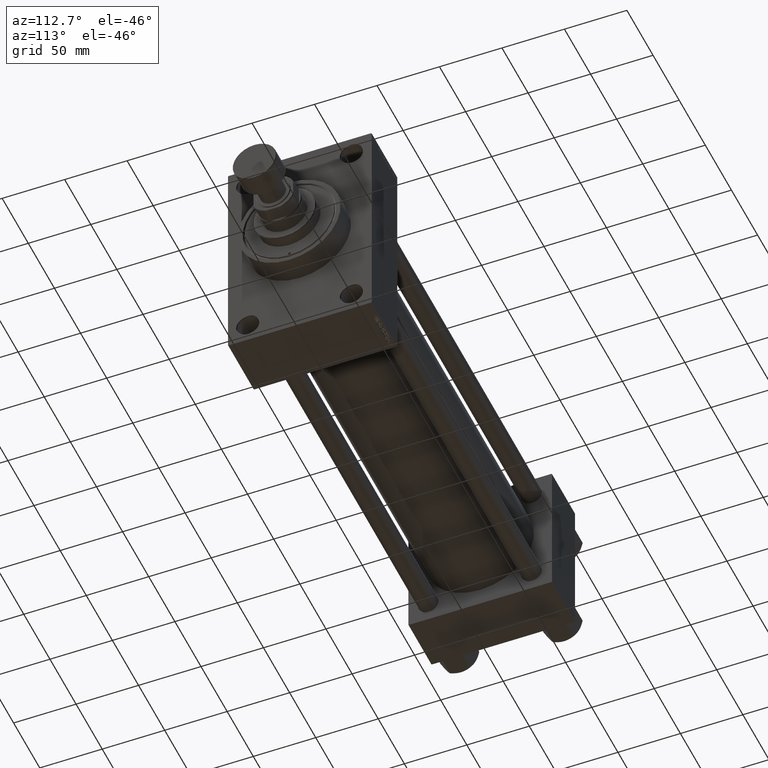
[diagram: clean part render]
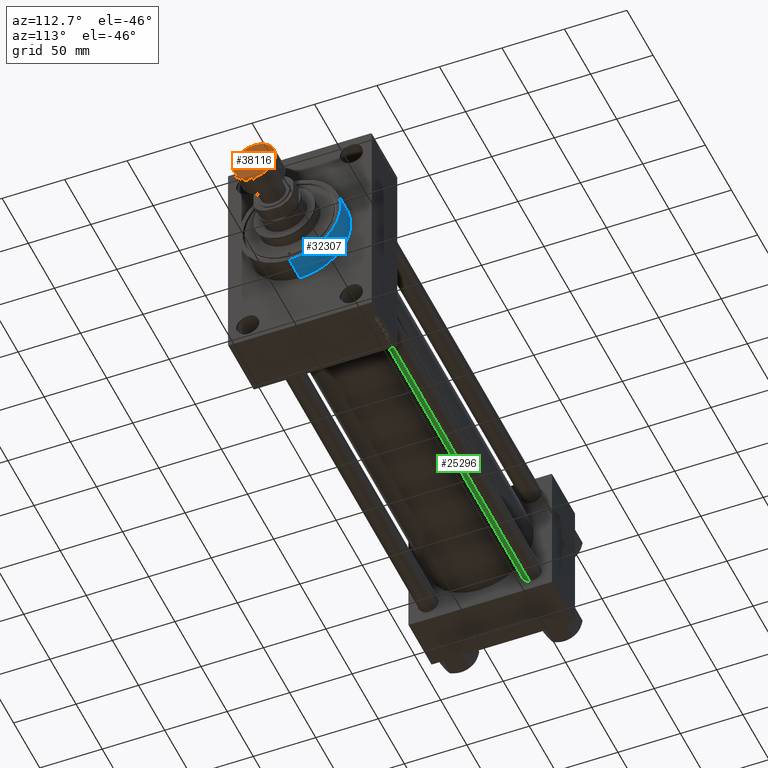
[diagram: same view with three faces highlighted in distinct colors, each labeled with its STEP entity id]
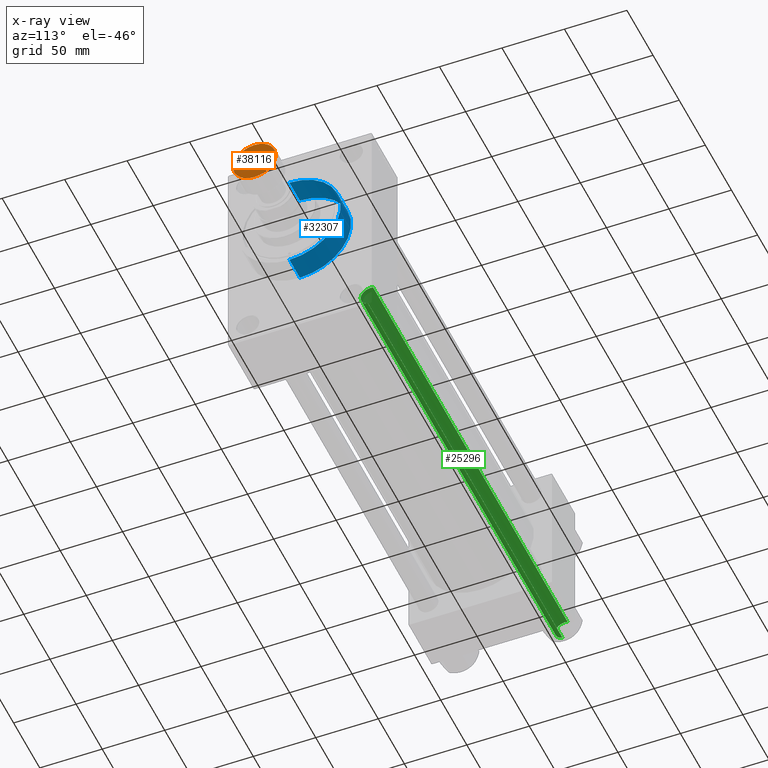
[diagram: x-ray of the same camera — body ghosted, the three highlighted faces saturated]
A machine part, auxiliary view with three faces highlighted in distinct colors.
The next image is the same camera in x-ray (body ghosted, the three faces saturated) — at least one of them is partly hidden behind the body in this view.
Their STEP definitions:

[orange] entity #38116 — the highlighted planar face has unit normal (1, 0, 0).
#3930 = CARTESIAN_POINT ( 'NONE',  ( 0.000000000000000000, 0.000000000000000000, 0.000000000000000000 ) ) ;
#11996 = CARTESIAN_POINT ( 'NONE',  ( 0.000000000000000000, 0.000000000000000000, 0.000000000000000000 ) ) ;
#14882 = ORIENTED_EDGE ( 'NONE', *, *, #34791, .T. ) ;
#16449 = VERTEX_POINT ( 'NONE', #46415 ) ;
#22159 = CARTESIAN_POINT ( 'NONE',  ( 0.000000000000000000, 0.000000000000000000, 0.000000000000000000 ) ) ;
#22262 = EDGE_CURVE ( 'NONE', #26932, #16449, #45960, .T. ) ;
#23608 = CIRCLE ( 'NONE', #36880, 17.00000000000000355 ) ;
#24357 = CARTESIAN_POINT ( 'NONE',  ( -17.00000000000000355, 2.112515728529184856E-15, 0.000000000000000000 ) ) ;
#25310 = AXIS2_PLACEMENT_3D ( 'NONE', #3930, #33526, #32148 ) ;
#26551 = DIRECTION ( 'NONE',  ( 1.000000000000000000, 0.000000000000000000, 0.000000000000000000 ) ) ;
#26932 = VERTEX_POINT ( 'NONE', #24357 ) ;
#28953 = FACE_OUTER_BOUND ( 'NONE', #46843, .T. ) ;
#32148 = DIRECTION ( 'NONE',  ( 1.000000000000000000, 0.000000000000000000, -0.000000000000000000 ) ) ;
#33526 = DIRECTION ( 'NONE',  ( 0.000000000000000000, 0.000000000000000000, 1.000000000000000000 ) ) ;
#34013 = ORIENTED_EDGE ( 'NONE', *, *, #22262, .T. ) ;
#34791 = EDGE_CURVE ( 'NONE', #16449, #26932, #23608, .T. ) ;
#36880 = AXIS2_PLACEMENT_3D ( 'NONE', #22159, #37079, #26551 ) ;
#37079 = DIRECTION ( 'NONE',  ( 0.000000000000000000, 0.000000000000000000, 1.000000000000000000 ) ) ;
#38116 = ADVANCED_FACE ( 'NONE', ( #28953 ), #47291, .T. ) ;
#38919 = AXIS2_PLACEMENT_3D ( 'NONE', #11996, #45492, #46206 ) ;
#45492 = DIRECTION ( 'NONE',  ( 0.000000000000000000, 0.000000000000000000, 1.000000000000000000 ) ) ;
#45960 = CIRCLE ( 'NONE', #38919, 17.00000000000000355 ) ;
#46206 = DIRECTION ( 'NONE',  ( 1.000000000000000000, 0.000000000000000000, 0.000000000000000000 ) ) ;
#46415 = CARTESIAN_POINT ( 'NONE',  ( 17.00000000000000355, 0.000000000000000000, 0.000000000000000000 ) ) ;
#46843 = EDGE_LOOP ( 'NONE', ( #14882, #34013 ) ) ;
#47291 = PLANE ( 'NONE',  #25310 ) ;

[blue] entity #32307 — the highlighted cylindrical surface (partial cylindrical patch) has radius 41 mm, axis along (-1, -0, -0).
#1870 = CARTESIAN_POINT ( 'NONE',  ( 409.0000000000000000, 0.000000000000000000, 0.000000000000000000 ) ) ;
#2020 = CARTESIAN_POINT ( 'NONE',  ( 388.9999999999999432, 0.000000000000000000, 0.000000000000000000 ) ) ;
#2329 = AXIS2_PLACEMENT_3D ( 'NONE', #14465, #40636, #32813 ) ;
#3223 = AXIS2_PLACEMENT_3D ( 'NONE', #1870, #8460, #28028 ) ;
#4076 = ORIENTED_EDGE ( 'NONE', *, *, #7605, .T. ) ;
#4797 = VERTEX_POINT ( 'NONE', #42555 ) ;
#5291 = CYLINDRICAL_SURFACE ( 'NONE', #3223, 41.00000000000000000 ) ;
#7389 = ORIENTED_EDGE ( 'NONE', *, *, #24572, .F. ) ;
#7605 = EDGE_CURVE ( 'NONE', #45324, #31547, #27509, .T. ) ;
#8460 = DIRECTION ( 'NONE',  ( -1.000000000000000000, -0.000000000000000000, -0.000000000000000000 ) ) ;
#10442 = CARTESIAN_POINT ( 'NONE',  ( 409.0000000000000000, 0.000000000000000000, 41.00000000000000000 ) ) ;
#13023 = DIRECTION ( 'NONE',  ( 0.000000000000000000, 0.000000000000000000, -1.000000000000000000 ) ) ;
#13657 = ORIENTED_EDGE ( 'NONE', *, *, #16556, .F. ) ;
#14465 = CARTESIAN_POINT ( 'NONE',  ( 409.0000000000000000, 0.000000000000000000, 0.000000000000000000 ) ) ;
#16485 = EDGE_LOOP ( 'NONE', ( #7389, #4076, #42208, #13657 ) ) ;
#16556 = EDGE_CURVE ( 'NONE', #4797, #29474, #36143, .T. ) ;
#18418 = VECTOR ( 'NONE', #36864, 1000.000000000000000 ) ;
#24289 = EDGE_CURVE ( 'NONE', #31547, #29474, #48366, .T. ) ;
#24572 = EDGE_CURVE ( 'NONE', #45324, #4797, #38250, .T. ) ;
#27509 = LINE ( 'NONE', #38295, #38674 ) ;
#28028 = DIRECTION ( 'NONE',  ( 0.000000000000000000, 0.000000000000000000, 1.000000000000000000 ) ) ;
#29474 = VERTEX_POINT ( 'NONE', #41080 ) ;
#29878 = CARTESIAN_POINT ( 'NONE',  ( 409.0000000000000000, 5.021051876504148963E-15, -41.00000000000000000 ) ) ;
#30724 = FACE_OUTER_BOUND ( 'NONE', #16485, .T. ) ;
#31547 = VERTEX_POINT ( 'NONE', #44149 ) ;
#32307 = ADVANCED_FACE ( 'NONE', ( #30724 ), #5291, .T. ) ;
#32813 = DIRECTION ( 'NONE',  ( 0.000000000000000000, 0.000000000000000000, -1.000000000000000000 ) ) ;
#36143 = LINE ( 'NONE', #10442, #18418 ) ;
#36864 = DIRECTION ( 'NONE',  ( -1.000000000000000000, -0.000000000000000000, -0.000000000000000000 ) ) ;
#38250 = CIRCLE ( 'NONE', #2329, 41.00000000000000000 ) ;
#38295 = CARTESIAN_POINT ( 'NONE',  ( 409.0000000000000000, 5.021051876504148963E-15, -41.00000000000000000 ) ) ;
#38674 = VECTOR ( 'NONE', #46104, 1000.000000000000000 ) ;
#39786 = AXIS2_PLACEMENT_3D ( 'NONE', #2020, #46035, #13023 ) ;
#40636 = DIRECTION ( 'NONE',  ( 1.000000000000000000, 0.000000000000000000, 0.000000000000000000 ) ) ;
#41080 = CARTESIAN_POINT ( 'NONE',  ( 388.9999999999999432, 0.000000000000000000, 41.00000000000000000 ) ) ;
#42208 = ORIENTED_EDGE ( 'NONE', *, *, #24289, .T. ) ;
#42555 = CARTESIAN_POINT ( 'NONE',  ( 409.0000000000000000, 0.000000000000000000, 41.00000000000000000 ) ) ;
#44149 = CARTESIAN_POINT ( 'NONE',  ( 388.9999999999999432, 5.021051876504148963E-15, -41.00000000000000000 ) ) ;
#45324 = VERTEX_POINT ( 'NONE', #29878 ) ;
#46035 = DIRECTION ( 'NONE',  ( 1.000000000000000000, 0.000000000000000000, 0.000000000000000000 ) ) ;
#46104 = DIRECTION ( 'NONE',  ( -1.000000000000000000, -0.000000000000000000, -0.000000000000000000 ) ) ;
#48366 = CIRCLE ( 'NONE', #39786, 41.00000000000000000 ) ;

[green] entity #25296 — the highlighted cylindrical surface (edge-blend (fillet) strip) has radius 8 mm, axis along (1, -0, 0).
#1006 = ORIENTED_EDGE ( 'NONE', *, *, #32074, .T. ) ;
#1475 = DIRECTION ( 'NONE',  ( 1.000000000000000000, 0.000000000000000000, 0.000000000000000000 ) ) ;
#2155 = VERTEX_POINT ( 'NONE', #26206 ) ;
#4637 = LINE ( 'NONE', #16611, #11752 ) ;
#4961 = ORIENTED_EDGE ( 'NONE', *, *, #36623, .T. ) ;
#6583 = CYLINDRICAL_SURFACE ( 'NONE', #45335, 8.000000000000000000 ) ;
#6905 = DIRECTION ( 'NONE',  ( -0.000000000000000000, -0.000000000000000000, 1.000000000000000000 ) ) ;
#7224 = EDGE_LOOP ( 'NONE', ( #18090, #4961, #19760, #1006 ) ) ;
#11752 = VECTOR ( 'NONE', #39119, 1000.000000000000000 ) ;
#12212 = CARTESIAN_POINT ( 'NONE',  ( 8.000000000000000000, 9.797174393178825657E-16, 372.5000000000000000 ) ) ;
#16611 = CARTESIAN_POINT ( 'NONE',  ( 8.000000000000000000, 9.797174393178825657E-16, 373.0000000000000000 ) ) ;
#17848 = DIRECTION ( 'NONE',  ( -1.000000000000000000, 0.000000000000000000, 0.000000000000000000 ) ) ;
#18090 = ORIENTED_EDGE ( 'NONE', *, *, #30575, .F. ) ;
#19760 = ORIENTED_EDGE ( 'NONE', *, *, #46383, .T. ) ;
#20616 = CARTESIAN_POINT ( 'NONE',  ( 0.000000000000000000, 0.000000000000000000, 373.0000000000000000 ) ) ;
#20651 = LINE ( 'NONE', #25444, #45106 ) ;
#21173 = CIRCLE ( 'NONE', #23544, 8.000000000000000000 ) ;
#21828 = DIRECTION ( 'NONE',  ( 1.000000000000000000, 0.000000000000000000, 0.000000000000000000 ) ) ;
#21976 = VERTEX_POINT ( 'NONE', #45139 ) ;
#23544 = AXIS2_PLACEMENT_3D ( 'NONE', #25968, #6905, #21828 ) ;
#24278 = FACE_OUTER_BOUND ( 'NONE', #7224, .T. ) ;
#25296 = ADVANCED_FACE ( 'NONE', ( #24278 ), #6583, .T. ) ;
#25444 = CARTESIAN_POINT ( 'NONE',  ( -8.000000000000000000, 0.000000000000000000, 373.0000000000000000 ) ) ;
#25968 = CARTESIAN_POINT ( 'NONE',  ( 0.000000000000000000, 0.000000000000000000, 0.5000000000000559552 ) ) ;
#26206 = CARTESIAN_POINT ( 'NONE',  ( 8.000000000000000000, 9.797174393178825657E-16, 0.5000000000000559552 ) ) ;
#27750 = VERTEX_POINT ( 'NONE', #12212 ) ;
#28837 = DIRECTION ( 'NONE',  ( -0.000000000000000000, -0.000000000000000000, -1.000000000000000000 ) ) ;
#30575 = EDGE_CURVE ( 'NONE', #27750, #2155, #4637, .T. ) ;
#32074 = EDGE_CURVE ( 'NONE', #21976, #2155, #21173, .T. ) ;
#34346 = CARTESIAN_POINT ( 'NONE',  ( -8.000000000000000000, 0.000000000000000000, 372.5000000000000000 ) ) ;
#35702 = CARTESIAN_POINT ( 'NONE',  ( 0.000000000000000000, 0.000000000000000000, 372.5000000000000000 ) ) ;
#36623 = EDGE_CURVE ( 'NONE', #27750, #45112, #37746, .T. ) ;
#37746 = CIRCLE ( 'NONE', #42438, 8.000000000000000000 ) ;
#39119 = DIRECTION ( 'NONE',  ( -0.000000000000000000, -0.000000000000000000, -1.000000000000000000 ) ) ;
#40378 = DIRECTION ( 'NONE',  ( -0.000000000000000000, -0.000000000000000000, -1.000000000000000000 ) ) ;
#42438 = AXIS2_PLACEMENT_3D ( 'NONE', #35702, #45972, #1475 ) ;
#45106 = VECTOR ( 'NONE', #40378, 1000.000000000000000 ) ;
#45112 = VERTEX_POINT ( 'NONE', #34346 ) ;
#45139 = CARTESIAN_POINT ( 'NONE',  ( -8.000000000000000000, 0.000000000000000000, 0.5000000000000559552 ) ) ;
#45335 = AXIS2_PLACEMENT_3D ( 'NONE', #20616, #28837, #17848 ) ;
#45972 = DIRECTION ( 'NONE',  ( 0.000000000000000000, 0.000000000000000000, -1.000000000000000000 ) ) ;
#46383 = EDGE_CURVE ( 'NONE', #45112, #21976, #20651, .T. ) ;